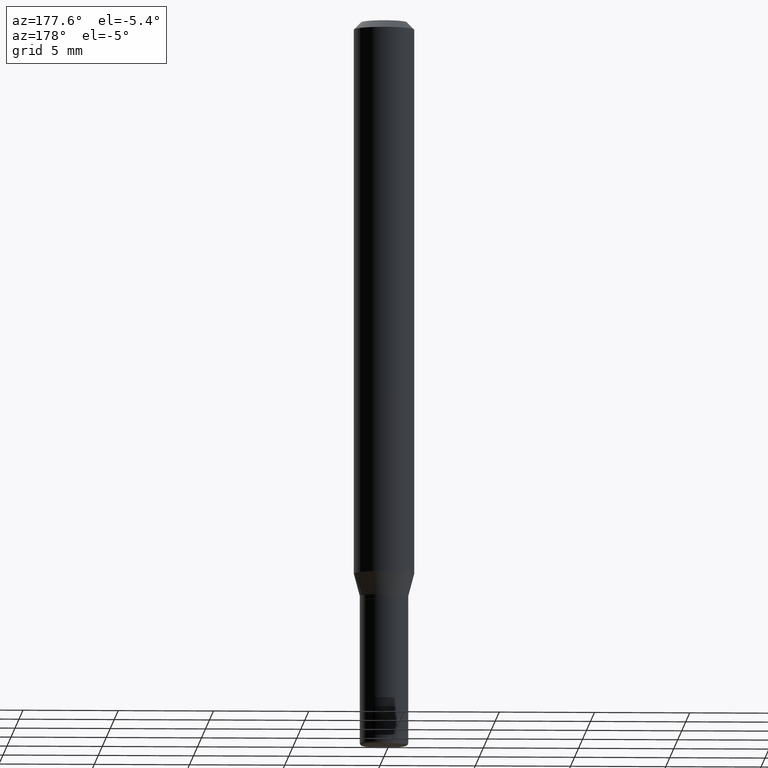
[diagram: clean part render]
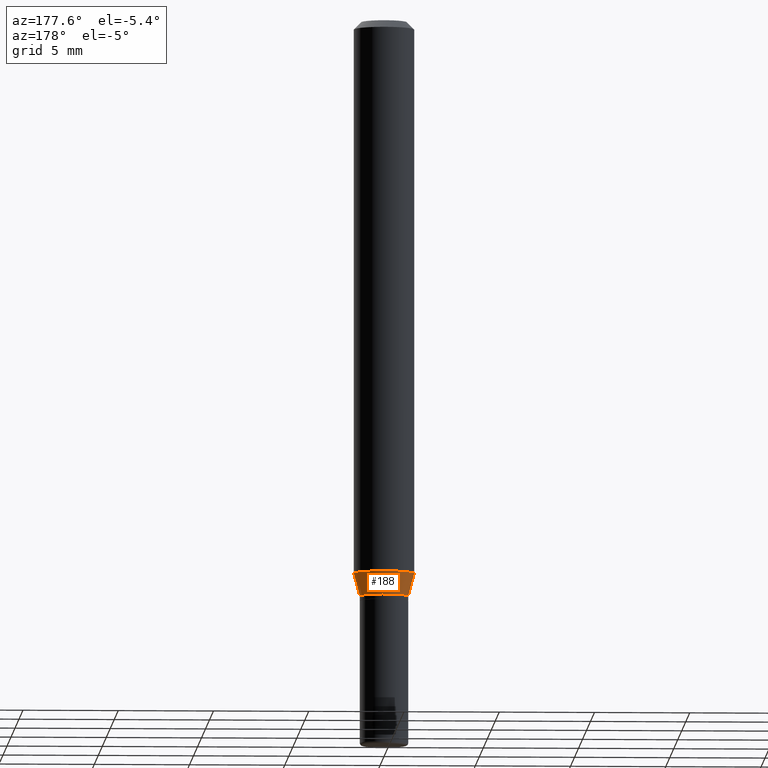
[diagram: same view with one face highlighted and labeled with its STEP entity id]
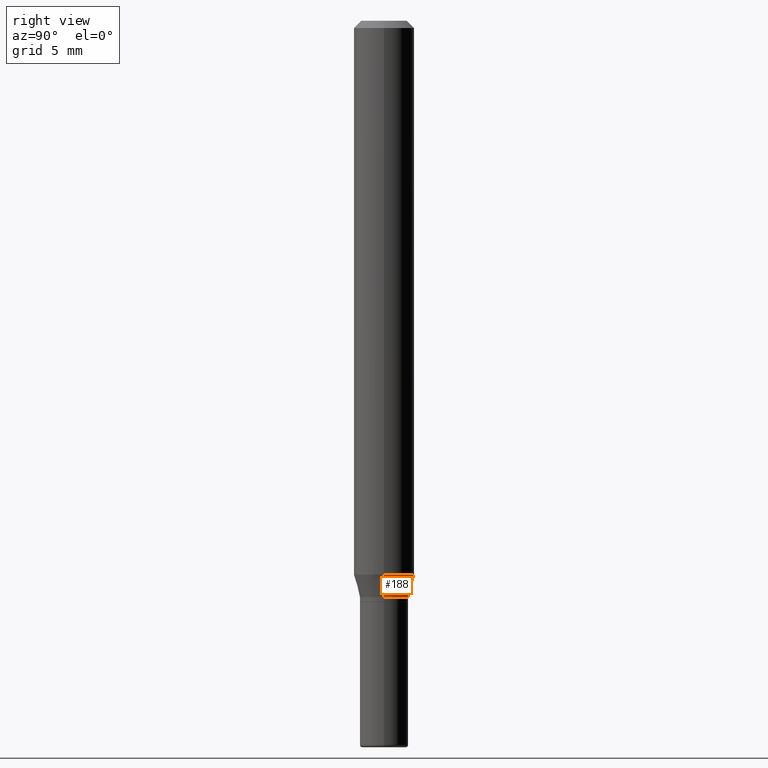
[diagram: same view with one face highlighted and labeled with its STEP entity id]
A machine part, auxiliary view. The second image highlights one B-rep face of the part: STEP entity #188.
A second angle (right view) of the same face is appended — the face is thin or edge-on in the first view.
In plain terms, the highlighted conical surface has half-angle 15 deg.
Its self-contained STEP definition (entity closure, byte-faithful):
#13 = ORIENTED_EDGE ( 'NONE', *, *, #442, .T. ) ;
#15 = DIRECTION ( 'NONE',  ( -0.2588190451025206840, 5.211531920934545520E-15, 0.9659258262890682012 ) ) ;
#66 = CARTESIAN_POINT ( 'NONE',  ( 2.796025206447715018E-29, -3.991982971345326635E-15, -1.143349364905388743 ) ) ;
#74 = CARTESIAN_POINT ( 'NONE',  ( -0.06250000000000000000, -3.547893761495264019E-15, -1.143349364905388743 ) ) ;
#78 = DIRECTION ( 'NONE',  ( -2.445468806185136597E-29, 3.491481338843145583E-15, 1.000000000000000000 ) ) ;
#97 = EDGE_LOOP ( 'NONE', ( #13, #465, #237, #215 ) ) ;
#98 = CARTESIAN_POINT ( 'NONE',  ( -0.04999999999999994726, -3.673742593419278882E-15, -1.189999999999999947 ) ) ;
#101 = VECTOR ( 'NONE', #15, 39.37007874015748854 ) ;
#169 = VERTEX_POINT ( 'NONE', #98 ) ;
#188 = ADVANCED_FACE ( 'NONE', ( #508 ), #477, .T. ) ;
#193 = DIRECTION ( 'NONE',  ( 1.000000000000000000, -6.982962677686261977E-15, 0.000000000000000000 ) ) ;
#196 = LINE ( 'NONE', #257, #101 ) ;
#215 = ORIENTED_EDGE ( 'NONE', *, *, #350, .F. ) ;
#219 = EDGE_CURVE ( 'NONE', #169, #414, #196, .T. ) ;
#222 = VERTEX_POINT ( 'NONE', #265 ) ;
#237 = ORIENTED_EDGE ( 'NONE', *, *, #258, .F. ) ;
#251 = DIRECTION ( 'NONE',  ( 0.2588190451025206840, 1.565188264969626504E-15, 0.9659258262890682012 ) ) ;
#257 = CARTESIAN_POINT ( 'NONE',  ( -0.04999999999999994726, -3.799591425343292957E-15, -1.189999999999999947 ) ) ;
#258 = EDGE_CURVE ( 'NONE', #222, #414, #428, .T. ) ;
#261 = AXIS2_PLACEMENT_3D ( 'NONE', #356, #78, #193 ) ;
#262 = DIRECTION ( 'NONE',  ( -2.445468806185136597E-29, 3.491481338843145583E-15, 1.000000000000000000 ) ) ;
#265 = CARTESIAN_POINT ( 'NONE',  ( 0.06250000000000000000, -4.428418138700718304E-15, -1.143349364905388743 ) ) ;
#281 = CARTESIAN_POINT ( 'NONE',  ( 0.04999999999999994726, -4.504010927107655912E-15, -1.189999999999999947 ) ) ;
#299 = DIRECTION ( 'NONE',  ( -2.445468806185136597E-29, 3.491481338843145583E-15, 1.000000000000000000 ) ) ;
#317 = CIRCLE ( 'NONE', #261, 0.04999999999999994726 ) ;
#320 = LINE ( 'NONE', #281, #405 ) ;
#326 = AXIS2_PLACEMENT_3D ( 'NONE', #66, #299, #416 ) ;
#332 = AXIS2_PLACEMENT_3D ( 'NONE', #395, #262, #342 ) ;
#342 = DIRECTION ( 'NONE',  ( 1.000000000000000000, -6.982962677686261977E-15, 0.000000000000000000 ) ) ;
#350 = EDGE_CURVE ( 'NONE', #423, #222, #320, .T. ) ;
#356 = CARTESIAN_POINT ( 'NONE',  ( 2.910107879360312034E-29, -4.154862793223342577E-15, -1.189999999999999947 ) ) ;
#395 = CARTESIAN_POINT ( 'NONE',  ( 2.910107879360312034E-29, -4.154862793223342577E-15, -1.189999999999999947 ) ) ;
#405 = VECTOR ( 'NONE', #251, 39.37007874015748854 ) ;
#414 = VERTEX_POINT ( 'NONE', #74 ) ;
#416 = DIRECTION ( 'NONE',  ( 1.000000000000000000, -6.982962677686262766E-15, 0.000000000000000000 ) ) ;
#423 = VERTEX_POINT ( 'NONE', #432 ) ;
#428 = CIRCLE ( 'NONE', #326, 0.06250000000000000000 ) ;
#432 = CARTESIAN_POINT ( 'NONE',  ( 0.04999999999999994726, -4.504010927107655912E-15, -1.189999999999999947 ) ) ;
#442 = EDGE_CURVE ( 'NONE', #423, #169, #317, .T. ) ;
#465 = ORIENTED_EDGE ( 'NONE', *, *, #219, .T. ) ;
#477 = CONICAL_SURFACE ( 'NONE', #332, 0.04999999999999994726, 0.2617993877991494078 ) ;
#508 = FACE_OUTER_BOUND ( 'NONE', #97, .T. ) ;